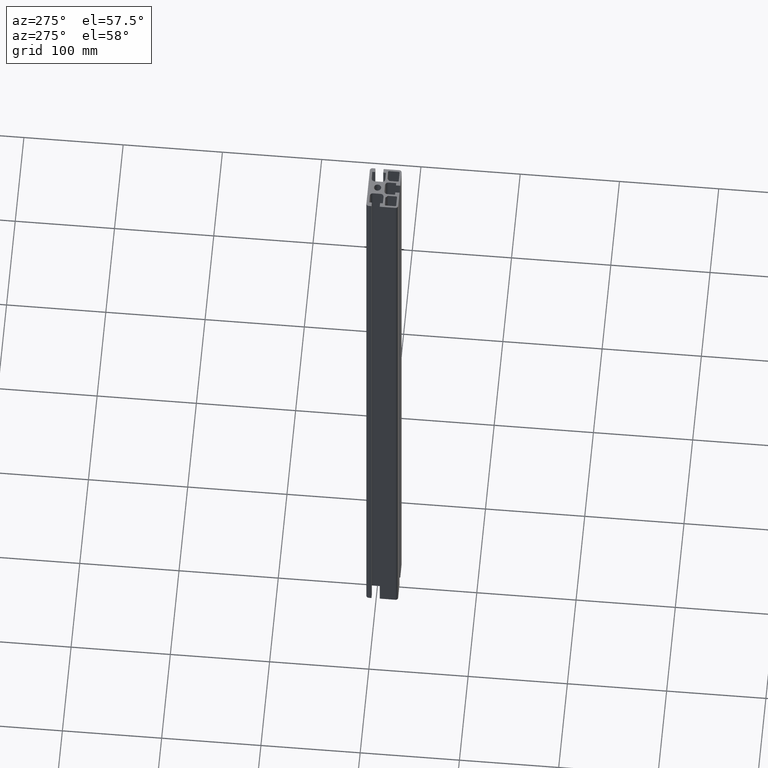
[diagram: clean part render]
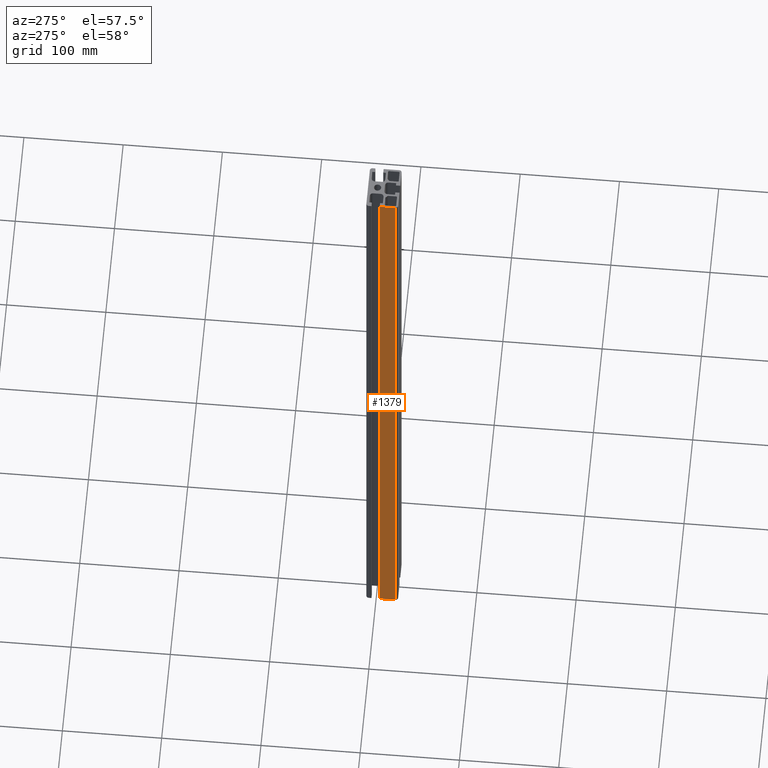
[diagram: same view with one face highlighted and labeled with its STEP entity id]
A machine part, auxiliary view. The second image highlights one B-rep face of the part: STEP entity #1379.
In plain terms, the highlighted planar face has unit normal (-1, -0, 0).
Its self-contained STEP definition (entity closure, byte-faithful):
#172=FACE_OUTER_BOUND('',#244,.T.);
#244=EDGE_LOOP('',(#1192,#1193,#1194,#1195));
#340=LINE('',#2191,#483);
#386=LINE('',#2310,#529);
#390=LINE('',#2323,#533);
#391=LINE('',#2326,#534);
#483=VECTOR('',#1782,10.);
#529=VECTOR('',#1896,10.);
#533=VECTOR('',#1912,10.);
#534=VECTOR('',#1917,10.);
#625=VERTEX_POINT('',#2185);
#627=VERTEX_POINT('',#2189);
#666=VERTEX_POINT('',#2309);
#669=VERTEX_POINT('',#2322);
#798=EDGE_CURVE('',#625,#627,#340,.T.);
#858=EDGE_CURVE('',#666,#625,#386,.T.);
#865=EDGE_CURVE('',#669,#666,#390,.T.);
#867=EDGE_CURVE('',#669,#627,#391,.T.);
#1192=ORIENTED_EDGE('',*,*,#798,.T.);
#1193=ORIENTED_EDGE('',*,*,#867,.F.);
#1194=ORIENTED_EDGE('',*,*,#865,.T.);
#1195=ORIENTED_EDGE('',*,*,#858,.T.);
#1312=PLANE('',#1527);
#1379=ADVANCED_FACE('',(#172),#1312,.T.);
#1527=AXIS2_PLACEMENT_3D('',#2325,#1915,#1916);
#1782=DIRECTION('',(0.,0.,-1.));
#1896=DIRECTION('',(-3.28954970259306E-16,1.,0.));
#1912=DIRECTION('',(0.,0.,1.));
#1915=DIRECTION('center_axis',(-1.,-3.28954970259306E-16,0.));
#1916=DIRECTION('ref_axis',(3.28954970259306E-16,-1.,0.));
#1917=DIRECTION('',(-3.28954970259306E-16,1.,0.));
#2185=CARTESIAN_POINT('',(-22.5,-4.45000000000061,732.));
#2189=CARTESIAN_POINT('',(-22.5,-4.45000000000061,0.));
#2191=CARTESIAN_POINT('',(-22.5,-4.45000000000059,0.));
#2309=CARTESIAN_POINT('',(-22.5,-20.,732.));
#2310=CARTESIAN_POINT('',(-22.5,0.249999999999993,732.));
#2322=CARTESIAN_POINT('',(-22.5,-20.,0.));
#2323=CARTESIAN_POINT('',(-22.5,-20.,0.));
#2325=CARTESIAN_POINT('Origin',(-22.5,6.99999999999999,0.));
#2326=CARTESIAN_POINT('',(-22.5,0.249999999999993,0.));